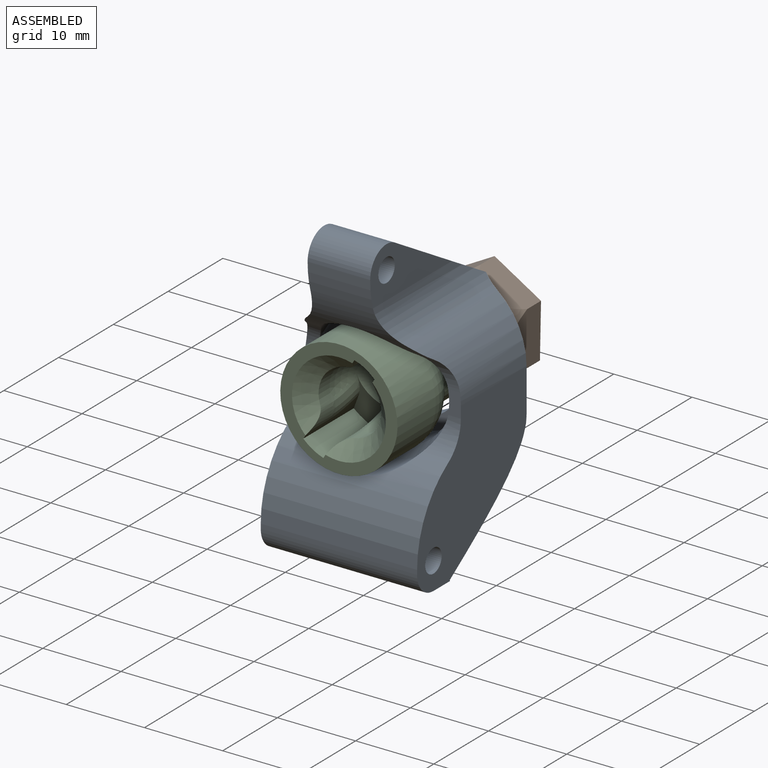
[diagram: assembled view]
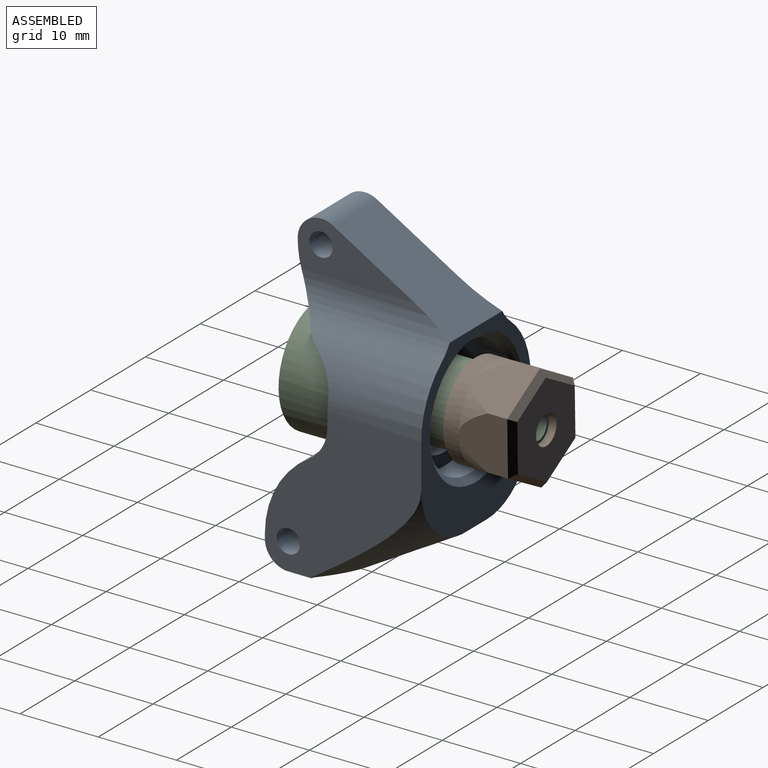
[diagram: assembled view, second angle]
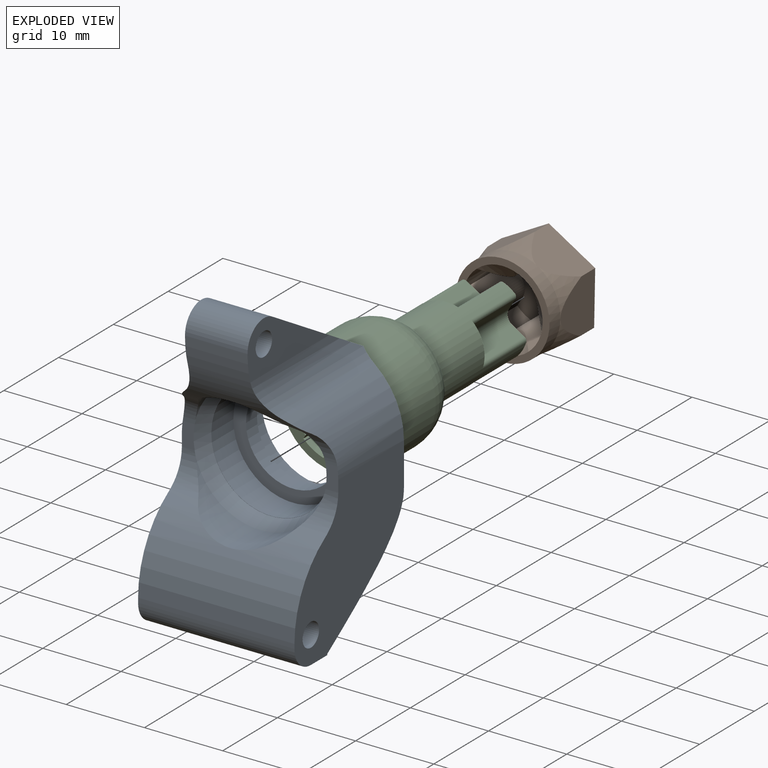
[diagram: exploded view]
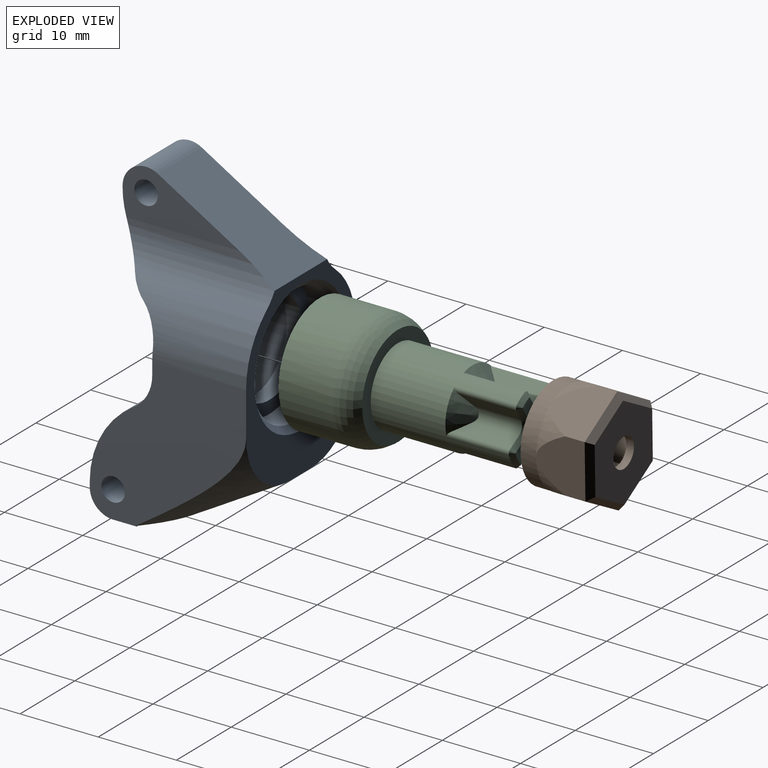
[diagram: exploded view, second angle]
ASSEMBLY  parts=3 mates=2
PART A: 41 faces, bbox 36.3x40.7x20.2 mm
  f0: cylinder r=8.5mm len=16.73mm, axis (0,0,1), area 75mm2, adj f20,f21,f35,f40
  f1: plane 0.26x0.15mm, normal (0,0,-1), area 0mm2, adj f2,f30,f33
  f2: plane 20x14mm, normal (1,0,0), area 176.1mm2, adj f1,f8,f13,f20,f26,f30,f33,f34
  f3: plane 0.25x0.14mm, normal (0,0,-1), area 0mm2, adj f11,f30,f31
  f4: plane 23.01x20.01mm, normal (0,0,-1), area 176.3mm2, adj f8,f10,f11,f12,f28,f31,f32,f33
  f5: plane 14.91x6.51mm, normal (1,0,0), area 51.3mm2, adj f7,f27,f28,f29,f37,f39
  f6: plane 14.91x6.51mm, normal (-1,0,0), area 51.3mm2, adj f7,f27,f28,f29,f38,f39
  f7: plane 8x0.08mm, normal (0,0,1), area 0.6mm2, adj f5,f6,f29,f39
  f8: plane 14x5.5mm, normal (1,0,0), area 68.4mm2, adj f2,f4,f12,f19,f20
  f9: cylinder r=7.62mm len=15.25mm, axis (0,0,-1), area 191.6mm2, adj f15,f25
  f10: cylinder r=10mm len=16.84mm, axis (0,0,-1), area 123.1mm2, adj f4,f11,f22,f23,f38,f39
  f11: plane 20x19.5mm, normal (-1,0,0), area 245.3mm2, adj f3,f4,f10,f13,f21,f22,f26,f30
  f12: cylinder r=10mm len=16.84mm, axis (0,0,-1), area 123.1mm2, adj f4,f8,f18,f19,f37,f39
  f13: plane 20x0.58mm, normal (0,0,1), area 11.6mm2, adj f2,f11,f34,f40
  f14: cylinder r=6mm len=12mm, axis (0,0,-1), area 75.4mm2, adj f15,f17
  f15: plane 15.25x15.25mm, normal (0,0,1), area 69.6mm2, adj f9,f14
  f16: cylinder r=7.62mm len=15.25mm, axis (0,0,-1), area 153.3mm2, adj f17,f36
  f17: plane 15.25x15.25mm, normal (0,0,-1), area 69.6mm2, adj f14,f16
  f18: cylinder r=5mm len=4.24mm, axis (-1,0,0), area 8.7mm2, adj f12,f19,f24,f39
  f19: plane 3x1.63mm, normal (0,0,1), area 4.6mm2, adj f8,f12,f18,f20,f35
  f20: cylinder r=5mm len=4.24mm, axis (-1,0,0), area 12.9mm2, adj f0,f2,f8,f19,f40
  f21: cylinder r=5mm len=4.24mm, axis (-1,0,0), area 12.9mm2, adj f0,f11,f22,f40
  f22: plane 3x1.63mm, normal (0,0,1), area 4.6mm2, adj f10,f11,f21,f23,f35
  f23: cylinder r=5mm len=4.24mm, axis (-1,0,0), area 8.7mm2, adj f10,f22,f24,f39
  f24: cylinder r=8.5mm len=16.73mm, axis (0,0,1), area 75mm2, adj f18,f23,f35,f39
  f25: plane 15.3x15.3mm, normal (0,0,1), area 1.2mm2, adj f9,f35
  f26: cylinder r=1.5mm len=20mm, axis (-1,0,0), area 188.5mm2, adj f2,f11
  f27: cylinder r=1.5mm len=8mm, axis (-1,0,0), area 75.4mm2, adj f5,f6
  f28: plane 15.66x9.78mm, normal (0,0.86,-0.51), area 146.7mm2, adj f4,f5,f6,f29,f37,f38
  f29: cylinder r=3mm len=8mm, axis (-1,0,0), area 50.4mm2, adj f5,f6,f7,f28
  f30: plane 20x6.51mm, normal (0,-1,0), area 109.7mm2, adj f1,f2,f3,f11,f31,f32,f33,f34
  f31: cone r=8mm half-angle=29.7deg, axis (0,0,1), area 124.4mm2, adj f3,f4,f11,f30,f32
  f32: bspline ~14x8mm, area 48.4mm2, adj f4,f30,f31,f33
  f33: bspline ~18.5x16.16mm, area 124.4mm2, adj f1,f2,f4,f30,f32
  f34: cylinder r=3mm len=20mm, axis (-1,0,0), area 94.2mm2, adj f2,f11,f13,f30
  f35: cone r=7.65mm half-angle=23deg, axis (0,0,1), area 110.3mm2, adj f0,f19,f22,f24,f25
  f36: cone r=7.62mm half-angle=45deg, axis (0,0,-1), area 57mm2, adj f4,f16
  f37: cylinder r=6mm len=19.5mm, axis (0,0,-1), area 89.7mm2, adj f4,f5,f12,f28,f39
  f38: cylinder r=6mm len=19.5mm, axis (0,0,-1), area 89.7mm2, adj f4,f6,f10,f28,f39
  f39: cylinder r=12mm len=16.37mm, axis (-1,0,0), area 93.1mm2, adj f5,f6,f7,f10,f12,f18,f23,f24
  f40: cylinder r=12mm len=20mm, axis (-1,0,0), area 205.8mm2, adj f0,f2,f11,f13,f20,f21
PART B: 43 faces, bbox 13.9x13.9x9.1 mm
  f0: plane 8.09x1.58mm, normal (0,-1,0), area 10.9mm2, adj f9,f28,f29,f34
  f1: plane 8.06x1.37mm, normal (1,0,0), area 9.7mm2, adj f9,f25,f29,f34
  f2: plane 8.06x1.37mm, normal (-1,0,0), area 9.7mm2, adj f10,f25,f29,f33
  f3: plane 8.09x1.58mm, normal (0,-1,0), area 10.9mm2, adj f10,f26,f29,f33
  f4: plane 8.09x1.58mm, normal (0,1,0), area 10.9mm2, adj f11,f26,f29,f36
  f5: plane 8.06x1.37mm, normal (-1,0,0), area 9.7mm2, adj f11,f27,f29,f36
  f6: plane 8.06x1.37mm, normal (1,0,0), area 9.7mm2, adj f8,f27,f29,f35
  f7: plane 8.09x1.58mm, normal (0,1,0), area 10.9mm2, adj f8,f28,f29,f35
  f8: cylinder r=2mm len=6.75mm, axis (0,0,-1), area 19.3mm2, adj f6,f7,f29,f35
  f9: cylinder r=2mm len=6.75mm, axis (0,0,1), area 19.3mm2, adj f0,f1,f29,f34
  f10: cylinder r=2mm len=6.75mm, axis (0,0,-1), area 19.3mm2, adj f2,f3,f29,f33
  f11: cylinder r=2mm len=6.75mm, axis (0,0,1), area 19.3mm2, adj f4,f5,f29,f36
  f12: plane 6.25x6mm, normal (0.87,0.5,0), area 34.5mm2, adj f13,f17,f19,f24,f41
  f13: plane 6.93x6.25mm, normal (0,1,0), area 34.5mm2, adj f12,f14,f23,f24,f39
  f14: plane 6.25x6mm, normal (-0.87,0.5,0), area 34.5mm2, adj f13,f15,f22,f23,f37
  f15: plane 6.25x6mm, normal (-0.87,-0.5,0), area 34.5mm2, adj f14,f16,f21,f22,f38
  f16: plane 6.93x6.25mm, normal (0,-1,0), area 34.5mm2, adj f15,f17,f20,f21,f40
  f17: plane 6.25x6mm, normal (0.87,-0.5,0), area 34.5mm2, adj f12,f16,f19,f20,f42
  f18: plane 12.12x10.5mm, normal (0,0,1), area 84.4mm2, adj f30,f37,f38,f39,f40,f41,f42
  f19: cone r=6mm half-angle=14deg, axis (0,0,1), area 8mm2, adj f12,f17,f31
  f20: cone r=6mm half-angle=14deg, axis (0,0,1), area 8mm2, adj f16,f17,f31
  f21: cone r=6mm half-angle=14deg, axis (0,0,1), area 8mm2, adj f15,f16,f31
  f22: cone r=6mm half-angle=14deg, axis (0,0,1), area 8mm2, adj f14,f15,f31
  f23: cone r=6mm half-angle=14deg, axis (0,0,1), area 8mm2, adj f13,f14,f31
  f24: cone r=6mm half-angle=14deg, axis (0,0,1), area 8mm2, adj f12,f13,f31
  f25: cylinder r=5.12mm len=8mm, axis (0,0,-1), area 22.3mm2, adj f1,f2,f29,f32
  f26: cylinder r=5.12mm len=8mm, axis (0,0,-1), area 26.5mm2, adj f3,f4,f29,f32
  f27: cylinder r=5.12mm len=8mm, axis (0,0,-1), area 22.3mm2, adj f5,f6,f29,f32
  f28: cylinder r=5.12mm len=8mm, axis (0,0,-1), area 26.5mm2, adj f0,f7,f29,f32
  f29: plane 10.25x10.25mm, normal (0,0,-1), area 44mm2, adj f0,f1,f2,f3,f4,f5,f6,f7
  f30: cylinder r=1.88mm len=3.75mm, axis (0,0,1), area 11.8mm2, adj f18,f29
  f31: cylinder r=6mm len=12mm, axis (0,0,1), area 75.4mm2, adj f19,f20,f21,f22,f23,f24,f32
  f32: plane 12x12mm, normal (0,0,-1), area 30.6mm2, adj f25,f26,f27,f28,f31,f33,f34,f35
  f33: cone r=2mm half-angle=45deg, axis (0,0,-1), area 9.6mm2, adj f2,f3,f10,f32
  f34: cone r=2mm half-angle=45deg, axis (0,0,-1), area 9.6mm2, adj f0,f1,f9,f32
  f35: cone r=2mm half-angle=45deg, axis (0,0,-1), area 9.6mm2, adj f6,f7,f8,f32
  f36: cone r=2mm half-angle=45deg, axis (0,0,-1), area 9.6mm2, adj f4,f5,f11,f32
  f37: plane 6x3.9mm, normal (-0.61,0.35,0.71), area 6.9mm2, adj f14,f18,f38,f39
  f38: plane 6x3.9mm, normal (-0.61,-0.35,0.71), area 6.9mm2, adj f15,f18,f37,f40
  f39: plane 6.93x0.75mm, normal (0,0.71,0.71), area 6.9mm2, adj f13,f18,f37,f41
  f40: plane 6.93x0.75mm, normal (0,-0.71,0.71), area 6.9mm2, adj f16,f18,f38,f42
  f41: plane 6x3.9mm, normal (0.61,0.35,0.71), area 6.9mm2, adj f12,f18,f39,f42
  f42: plane 6x3.9mm, normal (0.61,-0.35,0.71), area 6.9mm2, adj f17,f18,f40,f41
PART C: 82 faces, bbox 17.9x16.7x29.7 mm
  f0: plane 0.35x0.32mm, normal (0,0,-1), area 0mm2, adj f40,f78
  f1: plane 0.35x0.32mm, normal (0,0,-1), area 0mm2, adj f42,f79
  f2: plane 0.35x0.32mm, normal (0,0,-1), area 0mm2, adj f43,f81
  f3: extruded ~9.21x3mm, area 27.9mm2, adj f20,f21,f23,f25
  f4: extruded ~9.21x3mm, area 27.9mm2, adj f19,f22,f24,f25
  f5: cylinder r=7.5mm len=15mm, axis (0,0,1), area 329.9mm2, adj f25,f26,f27
  f6: cylinder r=4mm len=6.13mm, axis (0,0,-1), area 14mm2, adj f8,f9,f10,f12
  f7: cylinder r=4mm len=6.13mm, axis (0,0,-1), area 14mm2, adj f12,f14,f17,f18
  f8: cylinder r=3mm len=3.57mm, axis (0,0,-1), area 7.3mm2, adj f6,f10,f11,f24
  f9: cylinder r=3mm len=3.57mm, axis (0,0,-1), area 7.3mm2, adj f6,f10,f13,f23
  f10: cone r=4mm half-angle=45deg, axis (0,0,1), area 34.8mm2, adj f6,f8,f9,f23,f24,f25
  f11: torus R=5.36mm, axis (0,1,0), area 11.6mm2, adj f8,f12,f22,f24
  f12: sphere r=4mm, area 51.3mm2, adj f6,f7,f11,f13,f15,f16,f21,f22
  f13: torus R=5.36mm, axis (0,1,0), area 11.6mm2, adj f9,f12,f21,f23
  f14: cylinder r=3mm len=3.57mm, axis (0,0,-1), area 7.3mm2, adj f7,f15,f18,f20
  f15: torus R=5.36mm, axis (0,1,0), area 11.6mm2, adj f12,f14,f20,f21
  f16: torus R=5.36mm, axis (0,1,0), area 11.6mm2, adj f12,f17,f19,f22
  f17: cylinder r=3mm len=3.57mm, axis (0,0,-1), area 7.3mm2, adj f7,f16,f18,f19
  f18: cone r=4mm half-angle=45deg, axis (0,0,1), area 34.8mm2, adj f7,f14,f17,f19,f20,f25
  f19: plane 9.22x2.84mm, normal (0,1,0), area 11.6mm2, adj f4,f16,f17,f18,f22,f25
  f20: plane 9.22x2.84mm, normal (0,1,0), area 11.6mm2, adj f3,f14,f15,f18,f21,f25
  f21: plane 7.5x6.84mm, normal (0.37,0,0.93), area 15.7mm2, adj f3,f12,f13,f15,f20,f23
  f22: plane 6.29x5.62mm, normal (-0.37,0,0.93), area 15.7mm2, adj f4,f11,f12,f16,f19,f24
  f23: plane 9.22x2.84mm, normal (0,-1,0), area 11.6mm2, adj f3,f9,f10,f13,f21,f25
  f24: plane 9.22x2.84mm, normal (0,-1,0), area 11.6mm2, adj f4,f8,f10,f11,f22,f25
  f25: plane 15x15mm, normal (0,0,1), area 60.6mm2, adj f3,f4,f5,f10,f18,f19,f20,f23
  f26: torus R=2.5mm, axis (0,0,-1), area 61.7mm2, adj f5,f27,f28
  f27: torus R=2.5mm, axis (0,0,-1), area 83.1mm2, adj f5,f26,f28
  f28: plane 13.01x13mm, normal (0,0,-1), area 55.8mm2, adj f26,f27,f29
  f29: cylinder r=4.95mm len=17.5mm, axis (0,0,1), area 359.4mm2, adj f28,f46,f47,f48,f49,f50,f51,f52
  f30: plane 0.35x0.32mm, normal (0,0,-1), area 0mm2, adj f41,f80
  f31: plane 7.77x2.02mm, normal (-1,0,0), area 12.4mm2, adj f41,f47,f74,f80
  f32: plane 7.68x1.76mm, normal (0,-1,0), area 11.1mm2, adj f41,f52,f70,f80
  f33: plane 7.68x1.76mm, normal (0,1,0), area 11.1mm2, adj f43,f53,f62,f81
  f34: plane 7.77x2.02mm, normal (-1,0,0), area 12.4mm2, adj f43,f50,f58,f81
  f35: plane 7.77x2.02mm, normal (1,0,0), area 12.4mm2, adj f42,f51,f57,f79
  f36: plane 7.68x1.76mm, normal (0,1,0), area 11.1mm2, adj f42,f49,f61,f79
  f37: plane 7.68x1.76mm, normal (0,-1,0), area 11.1mm2, adj f40,f48,f69,f78
  f38: plane 7.77x2.02mm, normal (1,0,0), area 12.4mm2, adj f40,f46,f73,f78
  f39: plane 8.9x8.9mm, normal (0,0,-1), area 23.5mm2, adj f44,f54,f57,f58,f59,f60,f61,f62
  f40: cylinder r=1.25mm len=6.02mm, axis (0,0,1), area 11.2mm2, adj f0,f37,f38,f71,f78
  f41: cylinder r=1.25mm len=6.02mm, axis (0,0,-1), area 11.2mm2, adj f30,f31,f32,f72,f80
  f42: cylinder r=1.25mm len=6.02mm, axis (0,0,-1), area 11.2mm2, adj f1,f35,f36,f59,f79
  f43: cylinder r=1.25mm len=6.02mm, axis (0,0,1), area 11.2mm2, adj f2,f33,f34,f60,f81
  f44: cylinder r=1.5mm len=16mm, axis (0,0,-1), area 150.8mm2, adj f39,f45
  f45: plane 3x3mm, normal (0,0,-1), area 7.1mm2, adj f44
  f46: cylinder r=0.5mm len=7.95mm, axis (0,0,1), area 5.2mm2, adj f29,f38,f75,f78
  f47: cylinder r=0.5mm len=7.95mm, axis (0,0,1), area 5.2mm2, adj f29,f31,f76,f80
  f48: cylinder r=0.5mm len=7.95mm, axis (0,0,1), area 5.4mm2, adj f29,f37,f67,f78
  f49: cylinder r=0.5mm len=7.95mm, axis (0,0,1), area 5.4mm2, adj f29,f36,f63,f79
  f50: cylinder r=0.5mm len=7.95mm, axis (0,0,1), area 5.2mm2, adj f29,f34,f56,f81
  f51: cylinder r=0.5mm len=7.95mm, axis (0,0,1), area 5.2mm2, adj f29,f35,f55,f79
  f52: cylinder r=0.5mm len=7.95mm, axis (0,0,1), area 5.4mm2, adj f29,f32,f68,f80
  f53: cylinder r=0.5mm len=7.95mm, axis (0,0,1), area 5.4mm2, adj f29,f33,f64,f81
  f54: cone r=4.45mm half-angle=45deg, axis (0,0,1), area 1.5mm2, adj f29,f39,f55,f56
  f55: cone r=0.5mm half-angle=45deg, axis (0,0,1), area 0.2mm2, adj f51,f54,f57
  f56: cone r=0.5mm half-angle=45deg, axis (0,0,1), area 0.2mm2, adj f50,f54,f58
  f57: plane 1.84x0.5mm, normal (0.71,0,-0.71), area 1.3mm2, adj f35,f39,f55,f59
  f58: plane 1.84x0.5mm, normal (-0.71,0,-0.71), area 1.3mm2, adj f34,f39,f56,f60
  f59: cone r=1.75mm half-angle=45deg, axis (0,0,-1), area 1.7mm2, adj f39,f42,f57,f61
  f60: cone r=1.75mm half-angle=45deg, axis (0,0,-1), area 1.7mm2, adj f39,f43,f58,f62
  f61: plane 2.02x0.88mm, normal (0,0.71,-0.71), area 1.2mm2, adj f36,f39,f59,f63
  f62: plane 1.64x0.5mm, normal (0,0.71,-0.71), area 1.2mm2, adj f33,f39,f60,f64
  f63: cone r=0.5mm half-angle=45deg, axis (0,0,1), area 0.2mm2, adj f49,f61,f65
  f64: cone r=0.5mm half-angle=45deg, axis (0,0,1), area 0.2mm2, adj f53,f62,f66
  f65: cone r=4.45mm half-angle=45deg, axis (0,0,1), area 1.1mm2, adj f29,f39,f63,f67
  f66: cone r=4.45mm half-angle=45deg, axis (0,0,1), area 1.1mm2, adj f29,f39,f64,f68
  f67: cone r=0.5mm half-angle=45deg, axis (0,0,1), area 0.2mm2, adj f48,f65,f69
  f68: cone r=0.5mm half-angle=45deg, axis (0,0,1), area 0.2mm2, adj f52,f66,f70
  f69: plane 1.64x0.5mm, normal (0,-0.71,-0.71), area 1.2mm2, adj f37,f39,f67,f71
  f70: plane 1.64x0.5mm, normal (0,-0.71,-0.71), area 1.2mm2, adj f32,f39,f68,f72
  f71: cone r=1.75mm half-angle=45deg, axis (0,0,-1), area 1.7mm2, adj f39,f40,f69,f73
  f72: cone r=1.75mm half-angle=45deg, axis (0,0,-1), area 1.7mm2, adj f39,f41,f70,f74
  f73: plane 1.84x0.5mm, normal (0.71,0,-0.71), area 1.3mm2, adj f38,f39,f71,f75
  f74: plane 1.84x0.5mm, normal (-0.71,0,-0.71), area 1.3mm2, adj f31,f39,f72,f76
  f75: cone r=0.5mm half-angle=45deg, axis (0,0,1), area 0.2mm2, adj f46,f73,f77
  f76: cone r=0.5mm half-angle=45deg, axis (0,0,1), area 0.2mm2, adj f47,f74,f77
  f77: cone r=4.45mm half-angle=45deg, axis (0,0,1), area 1.5mm2, adj f29,f39,f75,f76
  f78: cone r=2.5mm half-angle=45deg, axis (0,0,1), area 10.2mm2, adj f0,f29,f37,f38,f40,f46,f48
  f79: cone r=2.5mm half-angle=45deg, axis (0,0,1), area 10.2mm2, adj f1,f29,f35,f36,f42,f49,f51
  f80: cone r=2.5mm half-angle=45deg, axis (0,0,1), area 10.2mm2, adj f29,f30,f31,f32,f41,f47,f52
  f81: cone r=2.5mm half-angle=45deg, axis (0,0,1), area 10.2mm2, adj f2,f29,f33,f34,f43,f50,f53
PLACE A rot(axis=(1,0,0),90deg) t=(6.34,20.74,5.28)mm fixed
PLACE B rot(axis=(-0.93,0.26,0.26),94.1deg) t=(6.34,22.74,5.28)mm
PLACE C rot(axis=(0.78,-0.44,0.44),104deg) t=(6.34,16.74,5.28)mm
MATE fastened C.f44 <-> B.f30  axis (0,1,0) through (6.34,28.74,5.28)mm
MATE revolute C.f29 <-> A.f9  axis (0,-1,0) through (6.34,10.74,5.28)mm
